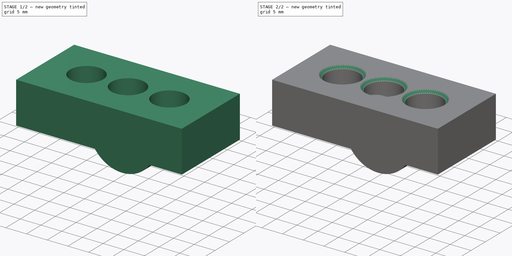
[diagram: build sequence overview — one tinted view per stage of 2, left to right]
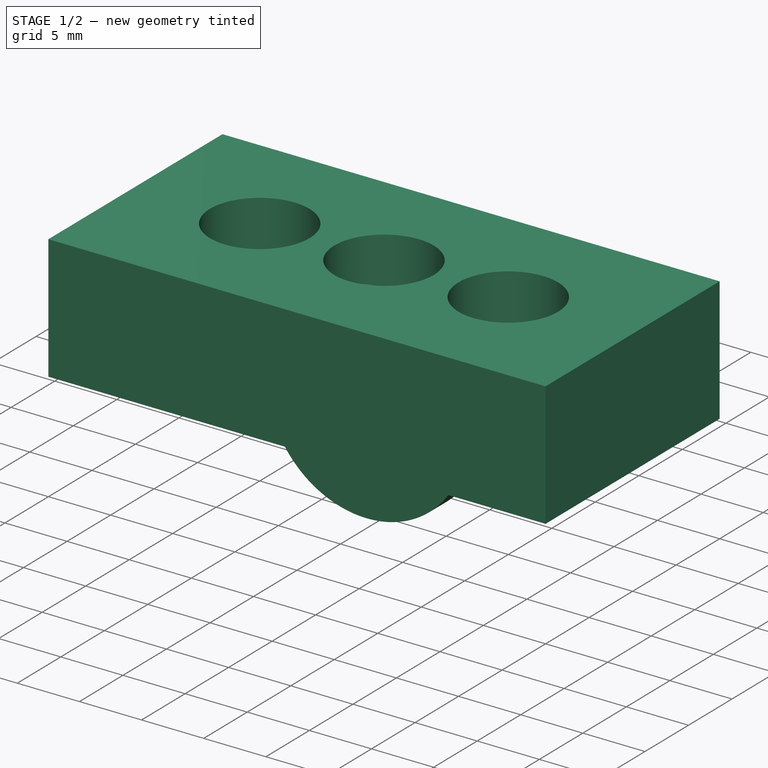
[diagram: stage 1 of 2 — iso view after this stage's code; geometry added in this stage tinted green]
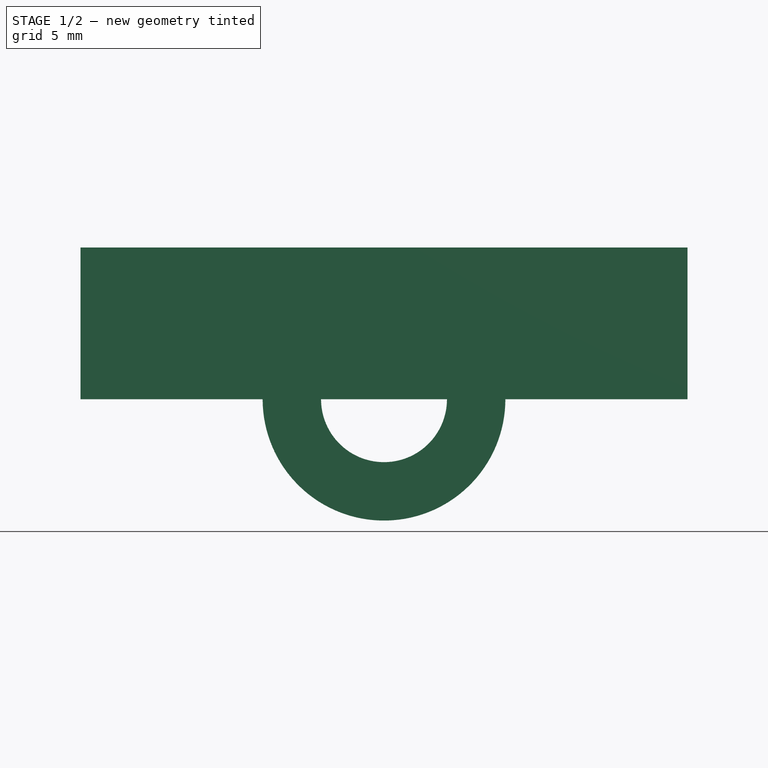
[diagram: stage 1 of 2 — front view after this stage's code; geometry added in this stage tinted green]
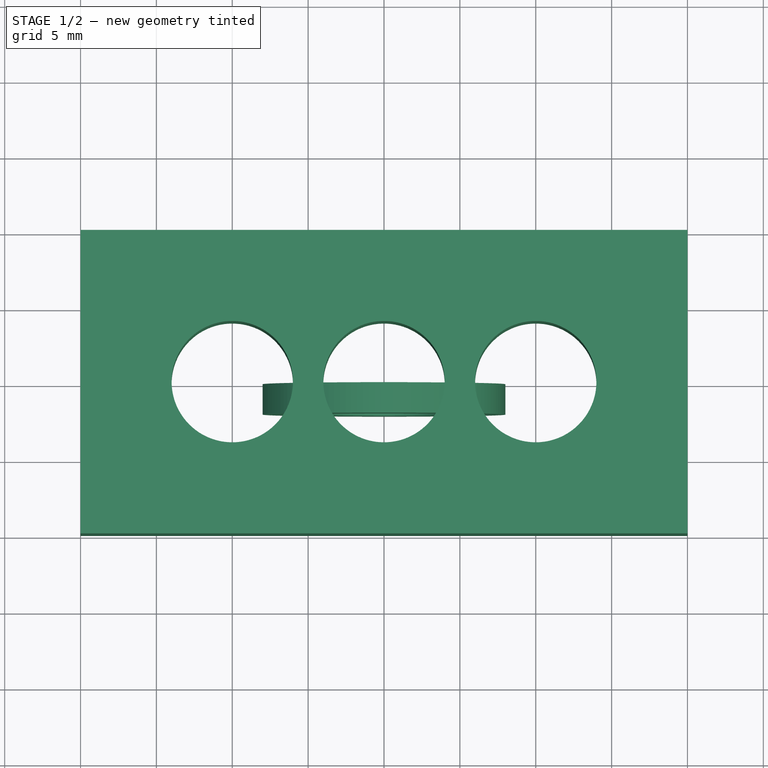
[diagram: stage 1 of 2 — top view after this stage's code; geometry added in this stage tinted green]
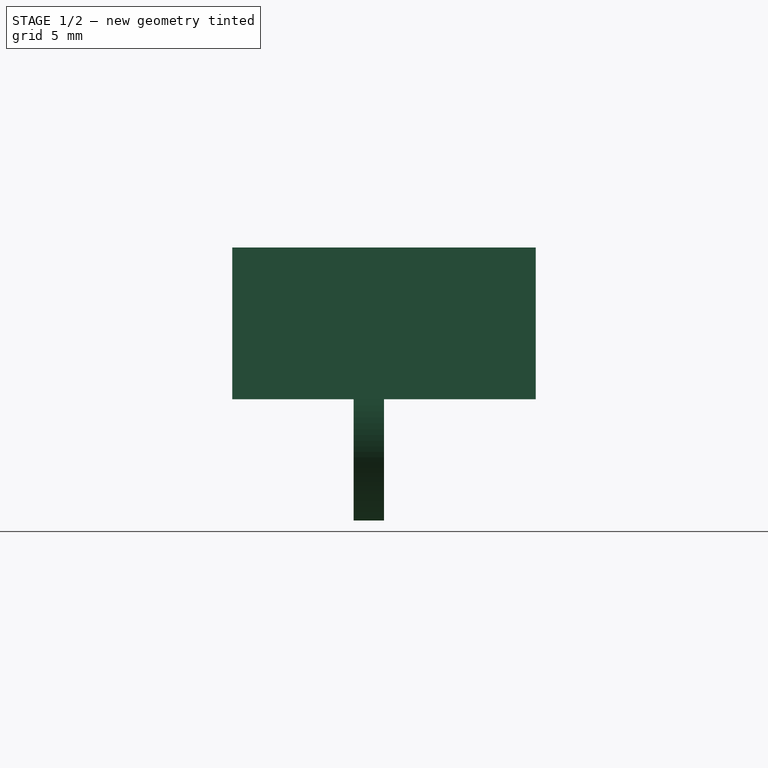
[diagram: stage 1 of 2 — right view after this stage's code; geometry added in this stage tinted green]
FCSTD DOCUMENT  (FreeCAD 0.19R17089 +1543 (Git))
Label: asm-003
License: All rights reserved
LicenseURL: http://en.wikipedia.org/wiki/All_rights_reserved
objects: Part::FeaturePython×17, App::FeaturePython×9, Sketcher::SketchObject×2, PartDesign::Pad×2, PartDesign::Body×2, PartDesign::Chamfer×1
note: 23 computed .brp shape members not serialized (recipe doc carries the construction recipe); baked Part::Feature solids carry a one-line shape summary decoded from their .brp

FEATURE [Sketcher::SketchObject] Sketch
  MapMode = 5
  Placement = pos=(0,0,0) rot=(1,0,0;1.5708rad)
  Support = -> [XZ_Plane]
  sketch-geometry (2):
    g0: Circle CenterX=0 CenterY=0 CenterZ=0 NormalX=0 NormalY=0 NormalZ=1 AngleXU=0 Radius=4.15
    g1: Circle CenterX=0 CenterY=0 CenterZ=0 NormalX=0 NormalY=0 NormalZ=1 AngleXU=0 Radius=8
  constraints (4):
    c: Coincident(g0,g-1)
    c: Coincident(g1,g0)
    c: Diameter(g0) = 8.3  'D1'
    c: Diameter(g1) = 16  'D2'
FEATURE [PartDesign::Pad] Pad
  ClaimChildren = false
  Length = 2
  Length2 = 100
  Placement = pos=(0,0,0) rot=(1,0,0;1.5708rad)
  Profile = -> Sketch
  Type = 0
FEATURE [PartDesign::Body] Body
  Group = -> [Sketch,Pad]
  Origin = -> Origin
  Tip = -> Pad
FEATURE [App::FeaturePython] Constraints  # WARN: FeaturePython — macro-defined, semantics opaque (R4)
  GroupMode = 1
  _Version = 1
FEATURE [Part::FeaturePython] Parts  # WARN: FeaturePython — macro-defined, semantics opaque (R4)
  Group = -> [Body]
  GroupMode = 0
FEATURE [Sketcher::SketchObject] Sketch001
  MapMode = 5
  Support = -> [XY_Plane001]
  sketch-geometry (7):
    g0: Circle CenterX=-10 CenterY=0 CenterZ=0 NormalX=0 NormalY=0 NormalZ=1 AngleXU=0 Radius=4
    g1: Circle CenterX=0 CenterY=0 CenterZ=0 NormalX=0 NormalY=0 NormalZ=1 AngleXU=0 Radius=4
    g2: Circle CenterX=10 CenterY=0 CenterZ=0 NormalX=0 NormalY=0 NormalZ=1 AngleXU=0 Radius=4
    g3: LineSegment StartX=-20 StartY=10 StartZ=0 EndX=20 EndY=10 EndZ=0
    g4: LineSegment StartX=20 StartY=10 StartZ=0 EndX=20 EndY=-10 EndZ=0
    g5: LineSegment StartX=20 StartY=-10 StartZ=0 EndX=-20 EndY=-10 EndZ=0
    g6: LineSegment StartX=-20 StartY=-10 StartZ=0 EndX=-20 EndY=10 EndZ=0
  constraints (17):
    c: PointOnObject(g0,g-1)
    c: Coincident(g1,g-1)
    c: Equal(g0,g1)
    c: Equal(g1,g2)
    c: Symmetric(g0,g2,g-2)
    c: Diameter(g0) = 8  'BHD'
    c: DistanceX(g0,g2) = 20  'L1'
    c: Coincident(g3,g4)
    c: Coincident(g4,g5)
    c: Coincident(g5,g6)
    c: Coincident(g6,g3)
    c: Horizontal(g3)
    c: Vertical(g6)
    c: Symmetric(g3,g4,g-1)
    c: Symmetric(g4,g5,g-2)
    c: Distance(g4) = 20  'W0'
    c: Distance(g5) = 40  'L0'
FEATURE [PartDesign::Pad] Pad001
  ClaimChildren = false
  Length = 10
  Length2 = 100
  Profile = -> Sketch001
  Type = 0
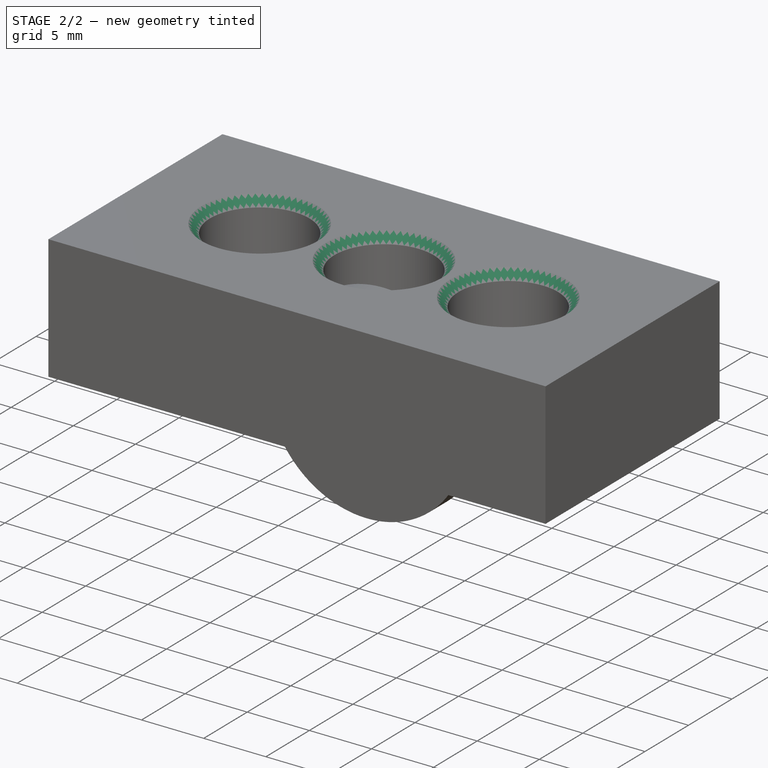
[diagram: stage 2 of 2 — iso view after this stage's code; geometry added in this stage tinted green]
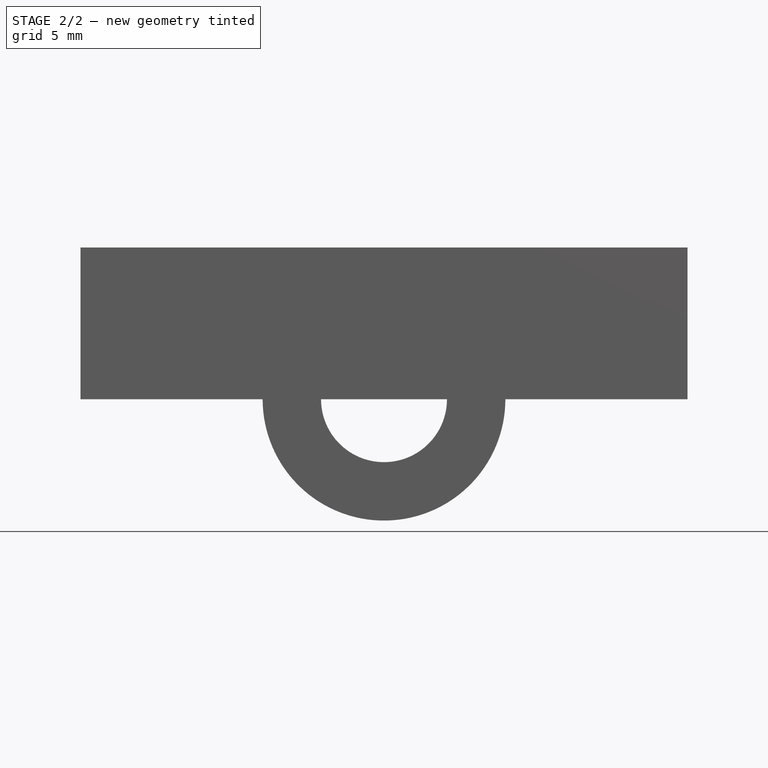
[diagram: stage 2 of 2 — front view after this stage's code; geometry added in this stage tinted green]
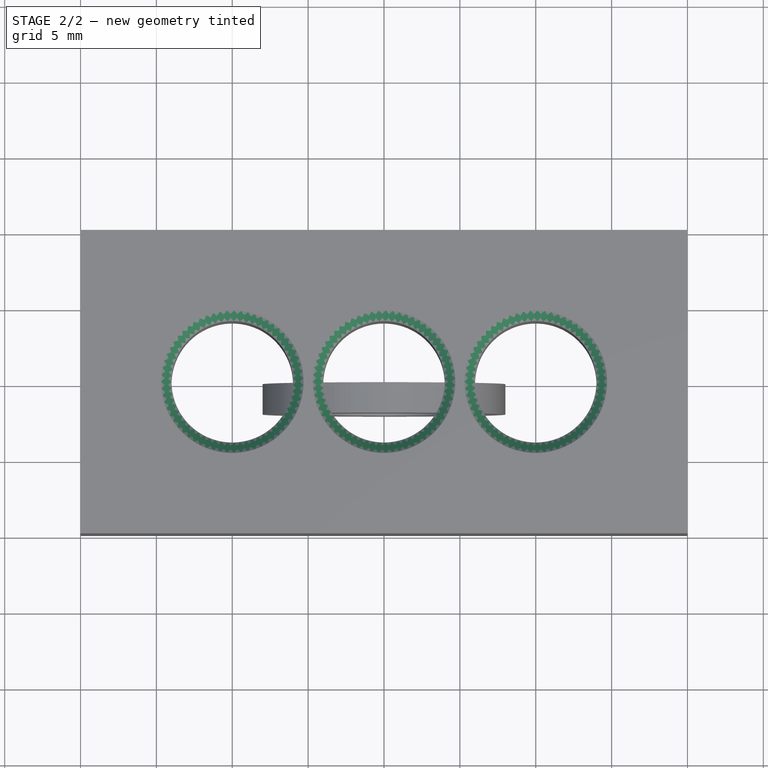
[diagram: stage 2 of 2 — top view after this stage's code; geometry added in this stage tinted green]
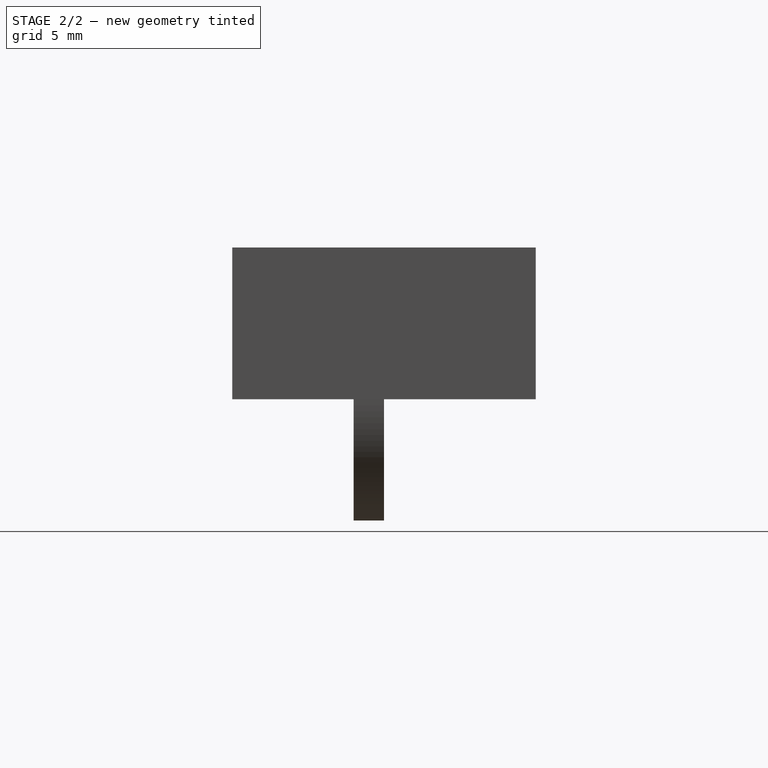
[diagram: stage 2 of 2 — right view after this stage's code; geometry added in this stage tinted green]
FEATURE [PartDesign::Chamfer] Chamfer
  Base = -> Pad001 [Edge21,Edge18,Edge15]
  BaseFeature = -> Pad001
  Size = 0.7
FEATURE [PartDesign::Body] Body001
  Group = -> [Sketch001,Pad001,Chamfer]
  Origin = -> Origin001
  Tip = -> Chamfer
FEATURE [App::FeaturePython] Constraints001  # WARN: FeaturePython — macro-defined, semantics opaque (R4)
  GroupMode = 1
  _Version = 1
FEATURE [Part::FeaturePython] Parts001  # WARN: FeaturePython — macro-defined, semantics opaque (R4)
  Group = -> [Body001]
  GroupMode = 0
FEATURE [Part::FeaturePython] Assembly  label="Assembly000 000"  # WARN: FeaturePython — macro-defined, semantics opaque (R4)
  AutoRelax = true
  BuildShape = 0
  Freeze = false
  Group = -> [Constraints,Elements,Parts]
  GroupMode = 1
  SolverType = 1
  Verbose = false
  _SolverType = 1
  _Version = 1
FEATURE [App::FeaturePython] Elements  # WARN: FeaturePython — macro-defined, semantics opaque (R4)
  Group = -> [Element,Element001]
  GroupMode = 1
FEATURE [Part::FeaturePython] Element  # link proxy (typed FeaturePython)
  Detach = false
  LinkTransform = true
  LinkedObject = -> Body [Pad.Edge5]
  _Parent = -> Elements
FEATURE [Part::FeaturePython] Element001  # link proxy (typed FeaturePython)
  Detach = false
  LinkTransform = true
  LinkedObject = -> Body [Pad.Edge6]
  _Parent = -> Elements
FEATURE [Part::FeaturePython] Assembly001  label="Assembly001 000"  # WARN: FeaturePython — macro-defined, semantics opaque (R4)
  AutoRelax = true
  BuildShape = 0
  Freeze = false
  Group = -> [Constraints001,Elements001,Parts001]
  GroupMode = 1
  Placement = pos=(-3.54873,-12,9.34914) rot=(0.438515,0.635494,0.635494;3.96812rad)
  SolverType = 1
  Verbose = false
  _SolverType = 1
  _Version = 1
FEATURE [App::FeaturePython] Elements001  # WARN: FeaturePython — macro-defined, semantics opaque (R4)
  Group = -> [Element002,Element003,Element004,Element005,Element006,Element007]
  GroupMode = 1
FEATURE [Part::FeaturePython] Element002  # link proxy (typed FeaturePython)
  Detach = false
  LinkTransform = true
  LinkedObject = -> Body001 [Chamfer.Edge12]
  _Parent = -> Elements001
FEATURE [Part::FeaturePython] Element003  # link proxy (typed FeaturePython)
  Detach = false
  LinkTransform = true
  LinkedObject = -> Body001 [Chamfer.Edge5]
  _Parent = -> Elements001
FEATURE [Part::FeaturePython] Element004  # link proxy (typed FeaturePython)
  Detach = false
  LinkTransform = true
  LinkedObject = -> Body001 [Pad001.Edge18]
  _Parent = -> Elements001
FEATURE [Part::FeaturePython] Element005  # link proxy (typed FeaturePython)
  Detach = false
  LinkTransform = true
  LinkedObject = -> Body001 [Pad001.Sketch001.Edge1]
  _Parent = -> Elements001
FEATURE [Part::FeaturePython] Element006  # link proxy (typed FeaturePython)
  Detach = false
  LinkTransform = true
  LinkedObject = -> Body001 [Pad001.Sketch001.Edge2]
  _Parent = -> Elements001
FEATURE [Part::FeaturePython] Element007  # link proxy (typed FeaturePython)
  Detach = false
  LinkTransform = true
  LinkedObject = -> Body001 [Pad001.Sketch001.Edge3]
  _Parent = -> Elements001
FEATURE [Part::FeaturePython] Assembly002  label="Assembly002 000"  # WARN: FeaturePython — macro-defined, semantics opaque (R4)
  AutoRelax = true
  BuildShape = 0
  Freeze = false
  Group = -> [Constraints002,Elements002,Parts002]
  GroupMode = 1
  SolverType = 1
  Verbose = false
  _SolverType = 1
  _Version = 1
FEATURE [App::FeaturePython] Constraints002  # WARN: FeaturePython — macro-defined, semantics opaque (R4)
  Group = -> [Constraint]
  GroupMode = 1
  _Version = 1
FEATURE [App::FeaturePython] Elements002  # WARN: FeaturePython — macro-defined, semantics opaque (R4)
  Group = -> [_Element,_Element001,_Element002]
  GroupMode = 1
FEATURE [Part::FeaturePython] Parts002  # WARN: FeaturePython — macro-defined, semantics opaque (R4)
  Group = -> [Assembly,Assembly001]
  GroupMode = 0
FEATURE [App::FeaturePython] Constraint  label="PlaneCoincident"  # WARN: FeaturePython — macro-defined, semantics opaque (R4)
  Angle = 0
  AnglePitch = 0
  AngleRoll = 0
  Cascade = false
  ConstraintType = 2
  Disabled = false
  Group = -> [ElementLink,ElementLink001]
  GroupMode = 1
  LockAngle = false
  Multiply = false
  OffsetX = 0
  OffsetY = 0
  _ConstraintType = 35
  _Parent = -> Constraints002
FEATURE [App::FeaturePython] ElementLink  label="Washer Upper Inner Edge"  # link proxy (typed FeaturePython)
  LinkTransform = true
  LinkedObject = -> _Element002
  _Parent = -> Constraint
FEATURE [Part::FeaturePython] _Element  label="Washer Lower Inner Edge"  # link proxy (typed FeaturePython)
  Detach = false
  LinkTransform = true
  LinkedObject = -> Assembly [1.$Element.]
  _Parent = -> Elements002
FEATURE [App::FeaturePython] ElementLink001  label="Outer Hole Outer Chamfer Edge"  # link proxy (typed FeaturePython)
  LinkTransform = true
  LinkedObject = -> _Element001
  _Parent = -> Constraint
FEATURE [Part::FeaturePython] _Element001  label="Outer Hole Outer Chamfer Edge"  # link proxy (typed FeaturePython)
  Detach = false
  LinkTransform = true
  LinkedObject = -> Assembly001 [1.$Element002.]
  _Parent = -> Elements002
FEATURE [Part::FeaturePython] _Element002  label="Washer Upper Inner Edge"  # link proxy (typed FeaturePython)
  Detach = false
  LinkTransform = true
  LinkedObject = -> Assembly [1.$Element001.]
  _Parent = -> Elements002
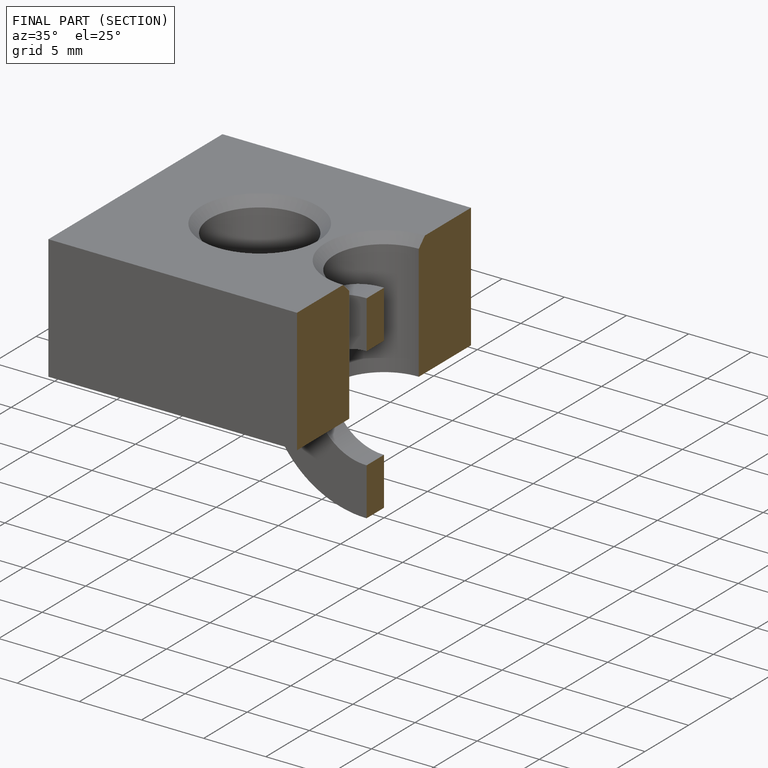
[diagram: finished part — half-section view (interior)]
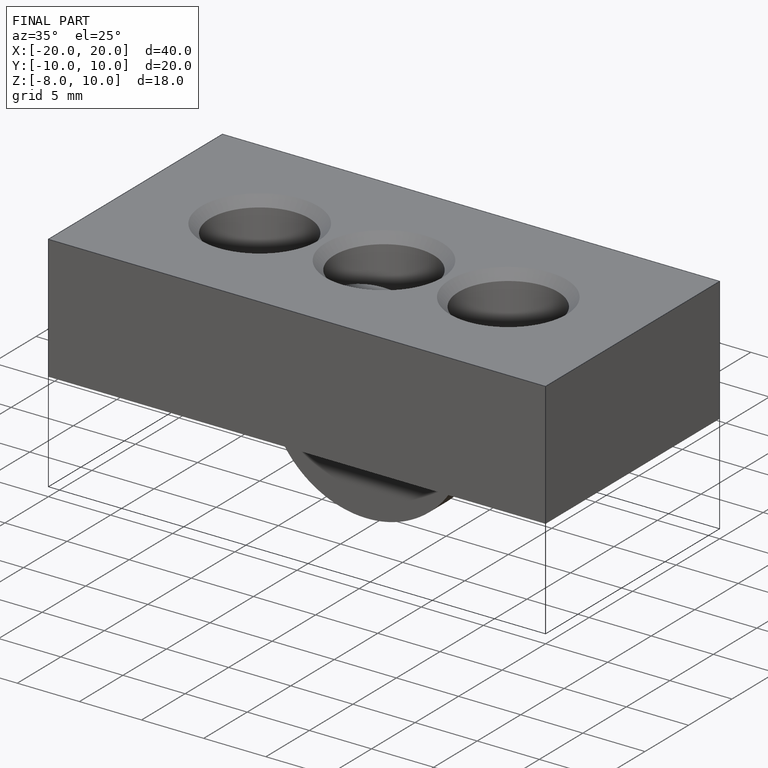
[diagram: finished part — iso view with bounding-box wireframe]
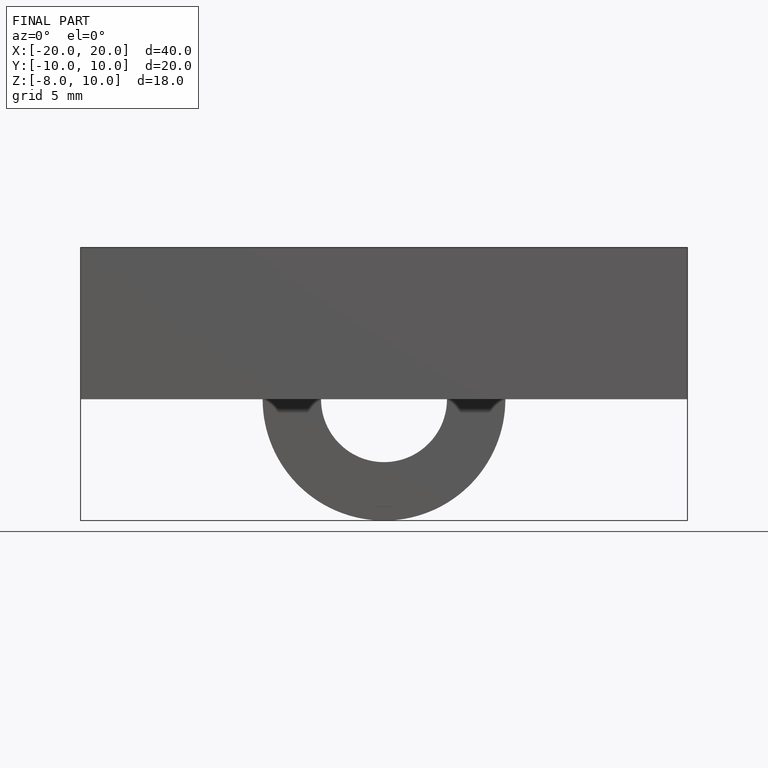
[diagram: finished part — front view with bounding-box wireframe]
